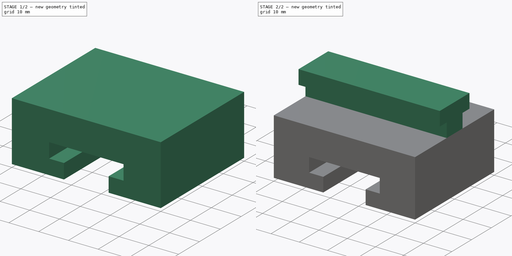
[diagram: build sequence overview — one tinted view per stage of 2, left to right]
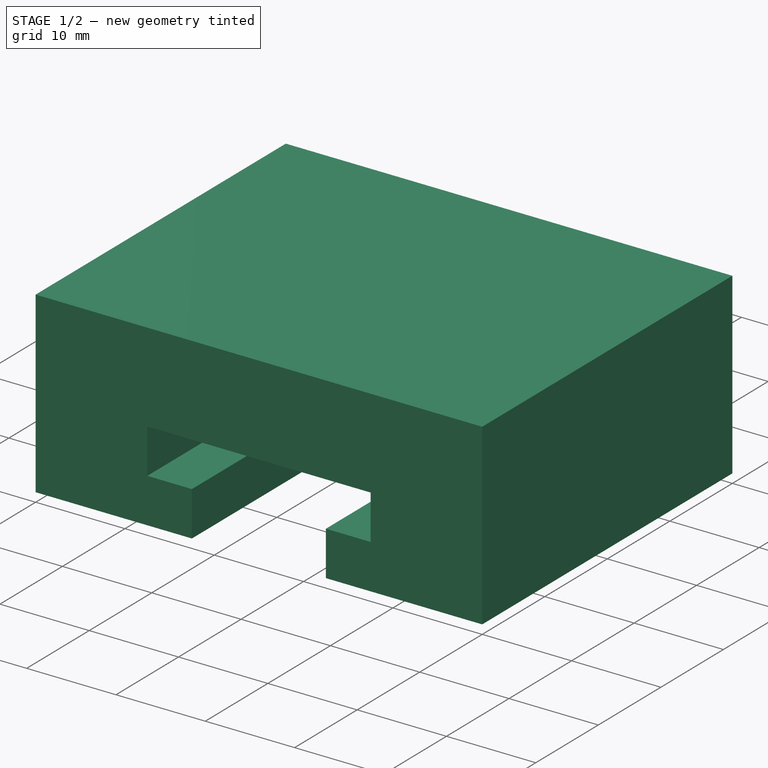
[diagram: stage 1 of 2 — iso view after this stage's code; geometry added in this stage tinted green]
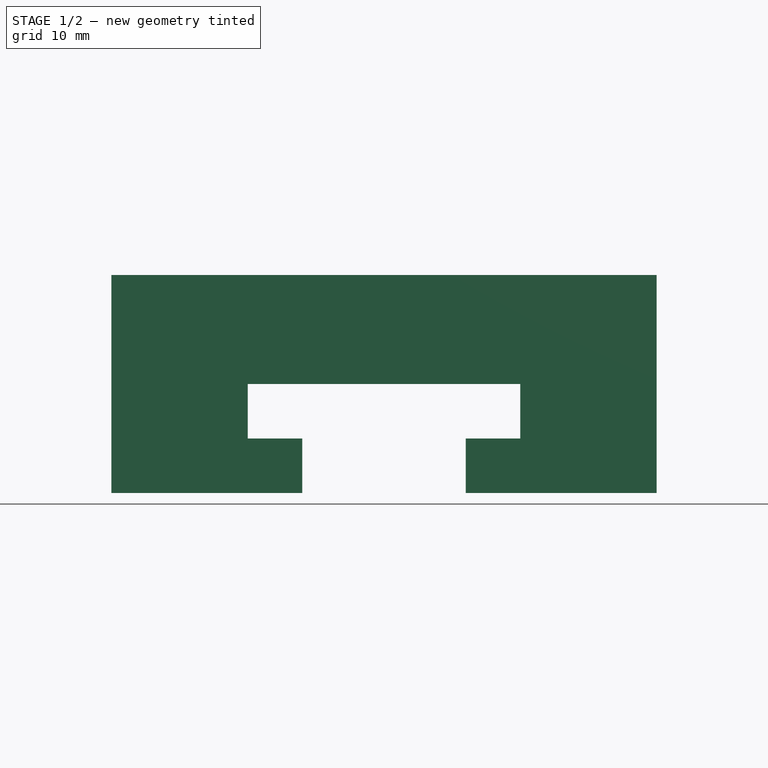
[diagram: stage 1 of 2 — front view after this stage's code; geometry added in this stage tinted green]
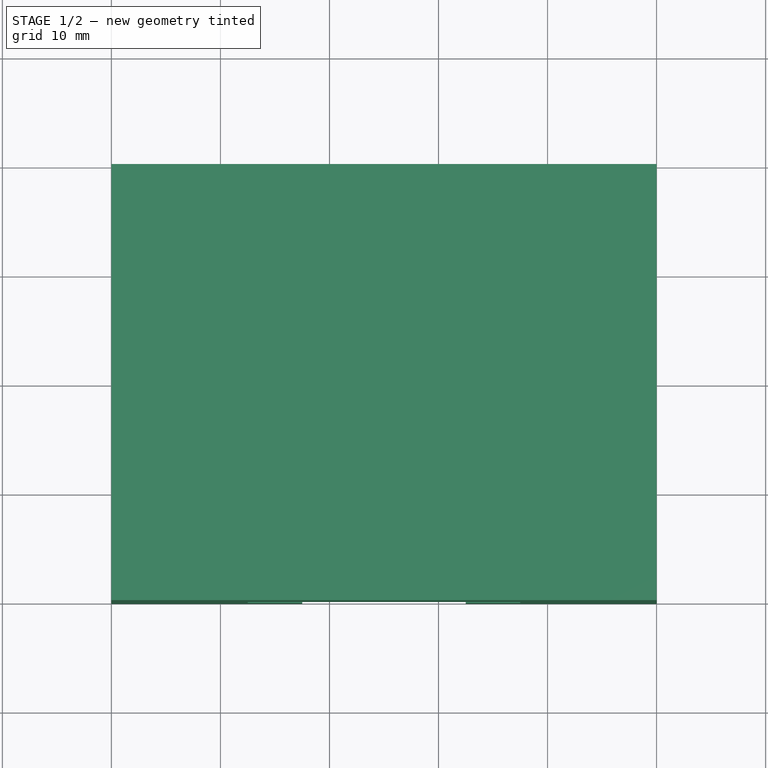
[diagram: stage 1 of 2 — top view after this stage's code; geometry added in this stage tinted green]
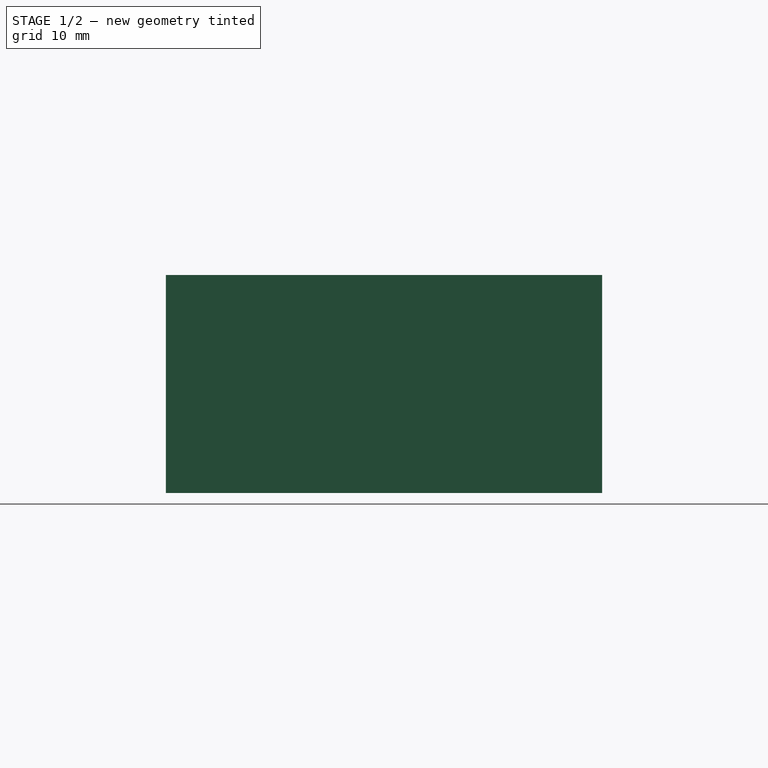
[diagram: stage 1 of 2 — right view after this stage's code; geometry added in this stage tinted green]
FCSTD DOCUMENT  (FreeCAD 0.14R3702 (Git))
Label: bloque1
License: CC-BY 3.0
LicenseURL: http://creativecommons.org/licenses/by/3.0/
objects: Sketcher::SketchObject×2, Part::Box×1, PartDesign::Pocket×1, PartDesign::Pad×1, Part::Feature×1, Part::MultiFuse×1
note: 9 computed .brp shape members not serialized (recipe doc carries the construction recipe); baked Part::Feature solids carry a one-line shape summary decoded from their .brp

FEATURE [Part::Box] Box  label="Cubo"
  Height = 20
  Length = 50
  Width = 40
FEATURE [Sketcher::SketchObject] Sketch
  ExternalGeometry = -> [Box]
  Placement = pos=(0,0,0) rot=(1,0,0;1.5708rad)
  Support = -> Box [Face3]
  sketch-geometry (10):
    g0: LineSegment [constr] StartX=25 StartY=27.5567 StartZ=0 EndX=25 EndY=-4.69181 EndZ=0
    g1: LineSegment [constr] StartX=-2.90327 StartY=10 StartZ=0 EndX=56.0433 EndY=10 EndZ=0
    g2: LineSegment StartX=12.5 StartY=5 StartZ=0 EndX=12.5 EndY=10 EndZ=0
    g3: LineSegment StartX=12.5 StartY=10 StartZ=0 EndX=37.5 EndY=10 EndZ=0
    g4: LineSegment StartX=37.5 StartY=10 StartZ=0 EndX=37.5 EndY=5 EndZ=0
    g5: LineSegment StartX=37.5 StartY=5 StartZ=0 EndX=32.5 EndY=5 EndZ=0
    g6: LineSegment StartX=32.5 StartY=5 StartZ=0 EndX=32.5 EndY=0 EndZ=0
    g7: LineSegment StartX=32.5 StartY=0 StartZ=0 EndX=17.5 EndY=0 EndZ=0
    g8: LineSegment StartX=17.5 StartY=0 StartZ=0 EndX=17.5 EndY=5 EndZ=0
    g9: LineSegment StartX=17.5 StartY=5 StartZ=0 EndX=12.5 EndY=5 EndZ=0
  constraints (27):
    c: Symmetric(g-4,g-3,g0)
    c: Horizontal(g1)
    c: Symmetric(g-1,g-3,g1)
    c: Vertical(g2)
    c: Coincident(g2,g3)
    c: Horizontal(g3)
    c: Coincident(g3,g4)
    c: Coincident(g4,g5)
    c: Coincident(g5,g6)
    c: Coincident(g6,g7)
    c: Horizontal(g7)
    c: Vertical(g4)
    c: Horizontal(g5)
    c: Vertical(g6)
    c: Symmetric(g2,g3,g0)
    c: Symmetric(g6,g7,g0)
    c: Coincident(g7,g8)
    c: Vertical(g8)
    c: Coincident(g8,g9)
    c: Coincident(g9,g2)
    c: Horizontal(g9)
    c: DistanceX(g3) = 25
    c: DistanceY(g4) = -5
    c: DistanceY(g6) = -5
    c: PointOnObject(g2,g1)
    c: Equal(g4,g2)
    c: DistanceX(g7) = -15
FEATURE [PartDesign::Pocket] Pocket
  Length = 5
  Sketch = -> Sketch
  Type = 1
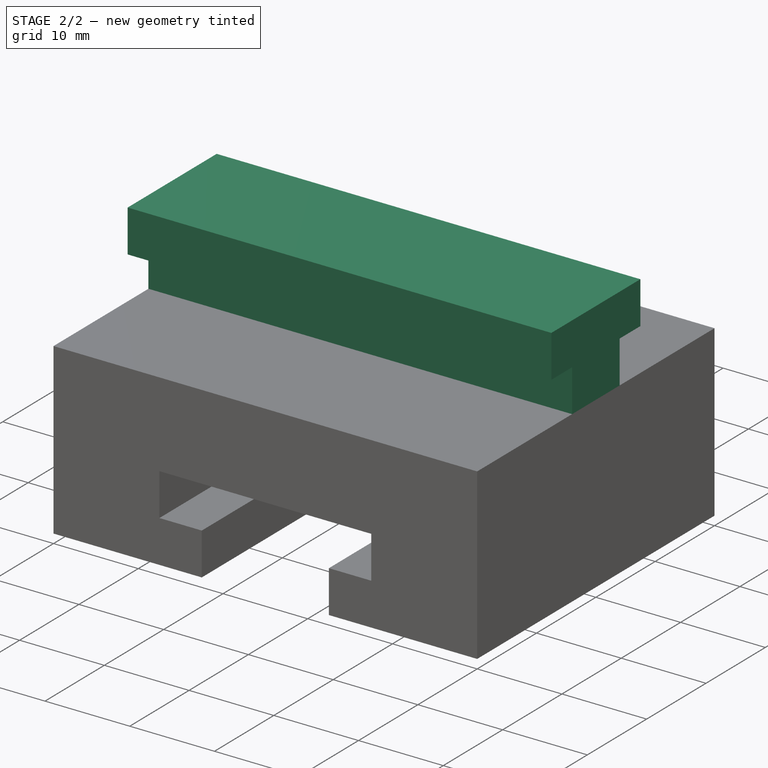
[diagram: stage 2 of 2 — iso view after this stage's code; geometry added in this stage tinted green]
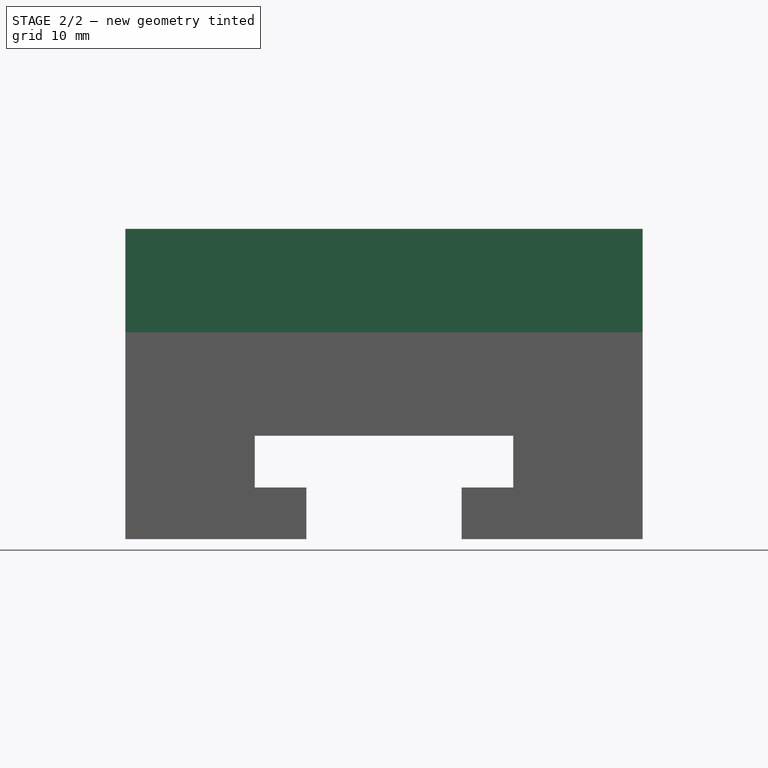
[diagram: stage 2 of 2 — front view after this stage's code; geometry added in this stage tinted green]
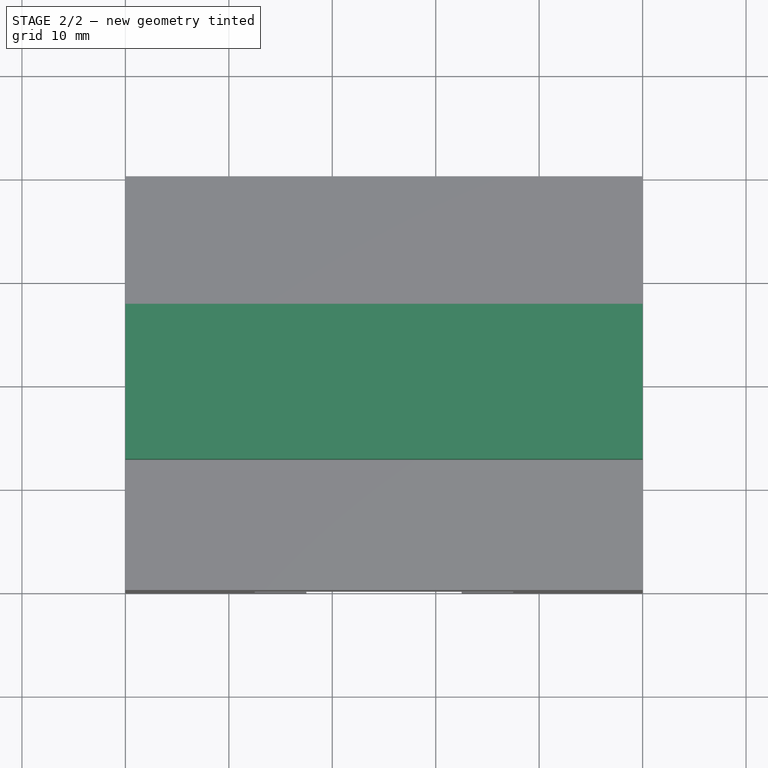
[diagram: stage 2 of 2 — top view after this stage's code; geometry added in this stage tinted green]
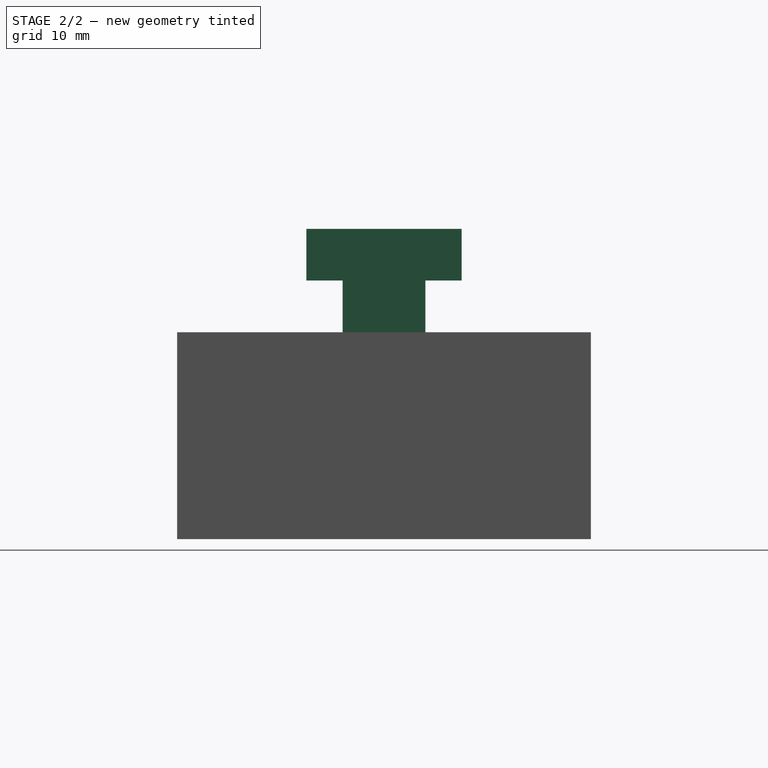
[diagram: stage 2 of 2 — right view after this stage's code; geometry added in this stage tinted green]
FEATURE [Sketcher::SketchObject] Sketch001
  ExternalGeometry = -> [Pocket]
  Placement = pos=(0,0,0) rot=(0.57735,-0.57735,-0.57735;2.0944rad)
  Support = -> Pocket [Face1]
  sketch-geometry (11):
    g0: LineSegment [constr] StartX=-45.6196 StartY=10 StartZ=0 EndX=12.1851 EndY=10 EndZ=0
    g1: LineSegment [constr] StartX=-20 StartY=25.9853 StartZ=0 EndX=-20 EndY=-6.98469 EndZ=0
    g2: LineSegment StartX=-27.5 StartY=30 StartZ=0 EndX=-12.5 EndY=30 EndZ=0
    g3: LineSegment StartX=-12.5 StartY=30 StartZ=0 EndX=-12.5 EndY=25 EndZ=0
    g4: LineSegment StartX=-12.5 StartY=25 StartZ=0 EndX=-16 EndY=25 EndZ=0
    g5: LineSegment StartX=-16 StartY=25 StartZ=0 EndX=-16 EndY=10 EndZ=0
    g6: LineSegment StartX=-16 StartY=10 StartZ=0 EndX=-24 EndY=10 EndZ=0
    g7: LineSegment StartX=-24 StartY=10 StartZ=0 EndX=-24 EndY=25 EndZ=0
    g8: LineSegment StartX=-24 StartY=25 StartZ=0 EndX=-27.5 EndY=25 EndZ=0
    g9: GeomPoint [constr] X=-27.5 Y=30 Z=0
    g10: LineSegment StartX=-27.5 StartY=30 StartZ=0 EndX=-27.5 EndY=25 EndZ=0
  constraints (29):
    c: Horizontal(g0)
    c: Symmetric(g-4,g-3,g1)
    c: Symmetric(g-4,g-4,g0)
    c: Horizontal(g2)
    c: Coincident(g2,g3)
    c: Vertical(g3)
    c: Coincident(g3,g4)
    c: Horizontal(g4)
    c: Coincident(g4,g5)
    c: Vertical(g5)
    c: Coincident(g5,g6)
    c: Horizontal(g6)
    c: Coincident(g6,g7)
    c: Vertical(g7)
    c: Coincident(g7,g8)
    c: Coincident(g2,g10)
    c: Coincident(g2,g9)
    c: Coincident(g8,g10)
    c: Horizontal(g8)
    c: DistanceX(g2) = 15
    c: DistanceY(g10) = -5
    c: DistanceX(g6) = -8
    c: Equal(g10,g3)
    c: DistanceY(g6,g7) = 15
    c: Symmetric(g5,g6,g1)
    c: PointOnObject(g5,g0)
    c: Vertical(g10)
    c: Symmetric(g2,g2,g1)
    c: Coincident(g5,g6)
FEATURE [PartDesign::Pad] Pad
  Length = 50
  Length2 = 100
  Reversed = true
  Sketch = -> Sketch001
  Type = 0
FEATURE [Part::Feature] Sketch002
  Placement = pos=(0,0,0) rot=(1,0,0;1.5708rad)
  shape: bbox 25 x 2e-07 x 10 mm, 0 faces, 0 solids (baked)
FEATURE [Part::MultiFuse] Fusion
  Shapes = -> [Pocket,Pad]
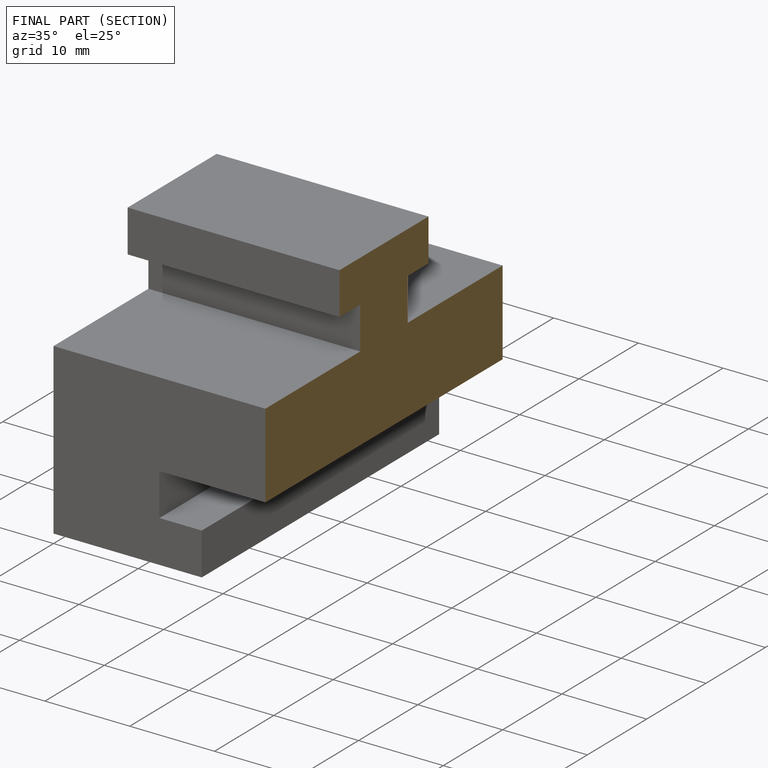
[diagram: finished part — half-section view (interior)]
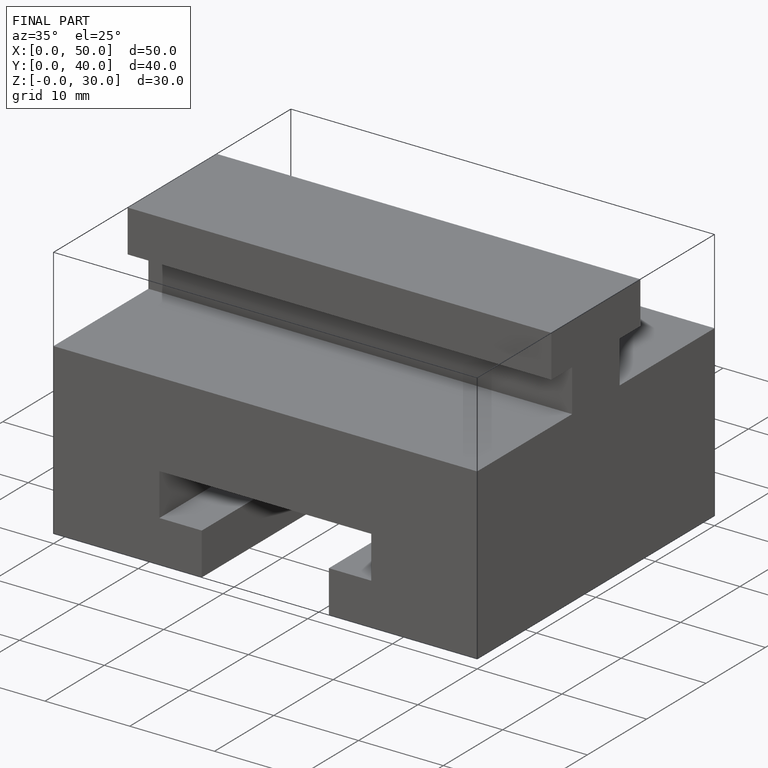
[diagram: finished part — iso view with bounding-box wireframe]
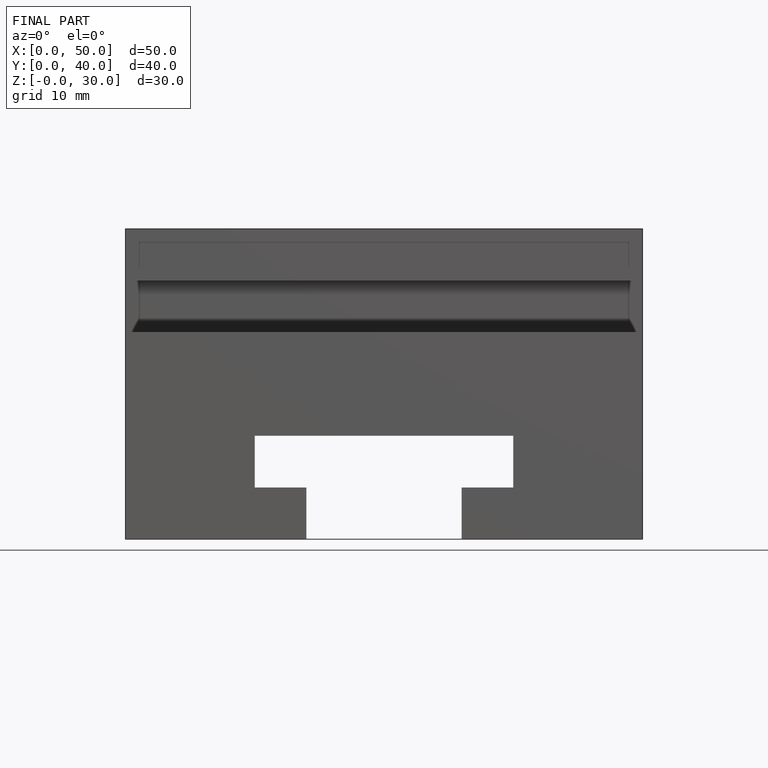
[diagram: finished part — front view with bounding-box wireframe]
